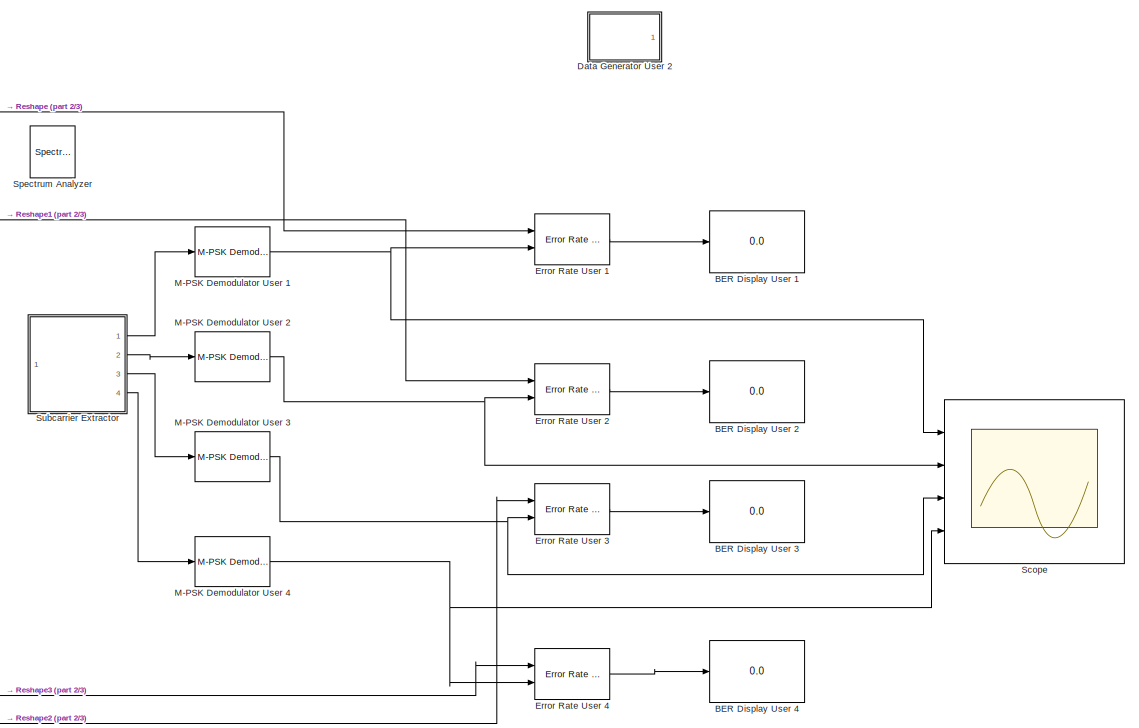
[diagram: root canvas - part 1/3, right side, full height]
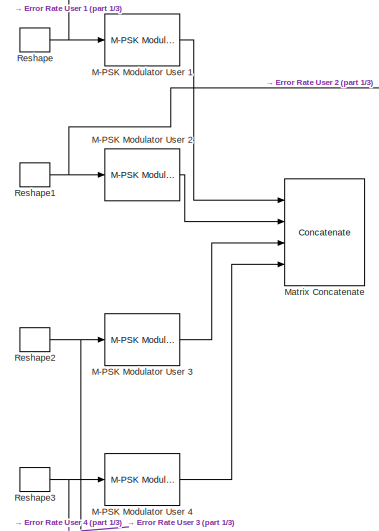
[diagram: root canvas - part 2/3, central region]
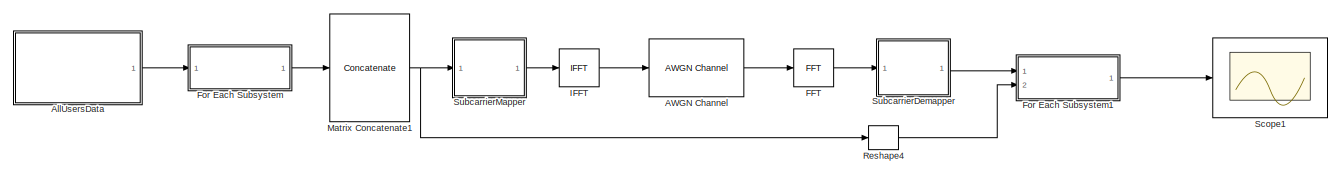
[diagram: root canvas - part 3/3, middle left region]
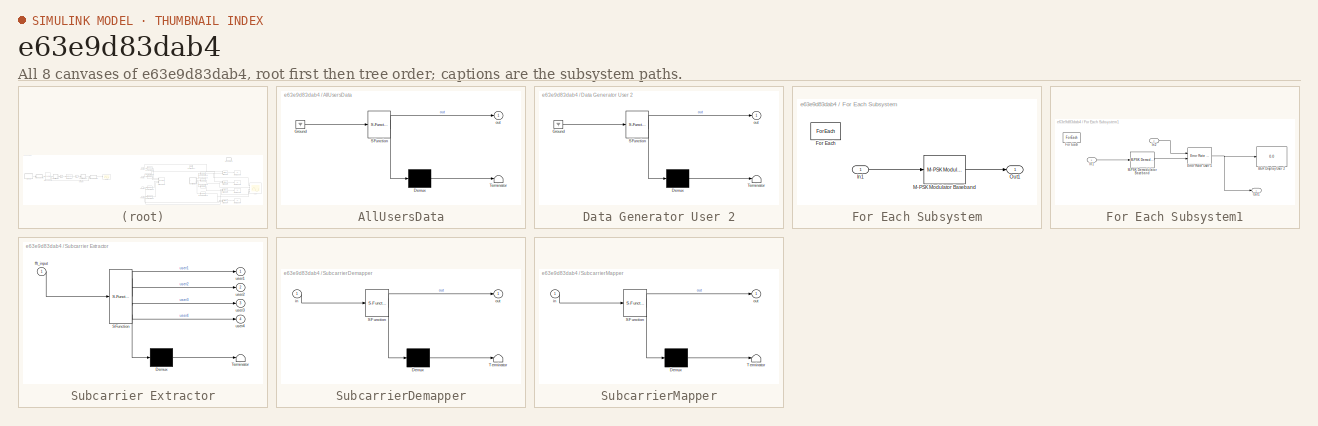
[diagram: thumbnail index - all 8 canvases of the model, root first then tree order]
MODEL slx_e63e9d83dab4
KIND model
CONFIG AbsTol = auto
CONFIG FixedStep = auto
CONFIG InitFcn = init_ofdma
CONFIG MaxStep = auto
CONFIG MinStep = auto
CONFIG RelTol = 1e-3
CONFIG SampleTimeConstraint = Unconstrained
CONFIG Solver = FixedStepDiscrete
CONFIG SolverMode = Auto
CONFIG SolverName = FixedStepDiscrete
CONFIG StartTime = 0.0
CONFIG StopTime = 10
BLOCK [Reference] AWGN Channel  REF=commchan3/AWGN
Channel
  Ports = [1, 1]
  SourceBlock = commchan3/AWGN\nChannel
  SourceType = AWGN Channel
  UserDataPersistent = on
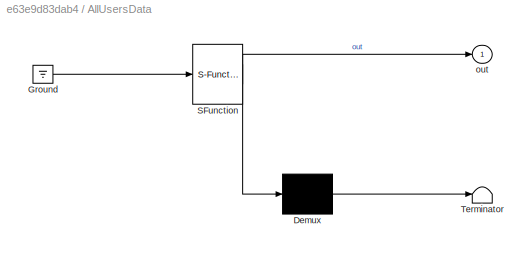
BLOCK [SubSystem] AllUsersData
  ErrorFcn = Stateflow.Translate.translate
  PermitHierarchicalResolution = ExplicitOnly
  Ports = [0, 1]
  RequestExecContextInheritance = off
  SFBlockType = MATLAB Function
  TreatAsAtomicUnit = on
  Variant = off
BLOCK [Demux] AllUsersData/ Demux 
  Outputs = 1
  Ports = [1, 1]
BLOCK [Ground] AllUsersData/ Ground 
BLOCK [S-Function] AllUsersData/ SFunction 
  EnableBusSupport = on
  FunctionName = sf_sfun
  Parameters = Nsc,numUsers
  PortCounts = [1 2]
  Ports = [1, 2]
  SFunctionDeploymentMode = off
  Tag = Stateflow S-Function OFDMA_Simulink_Demo 2
BLOCK [Terminator] AllUsersData/ Terminator 
BLOCK [Outport] AllUsersData/out
  IconDisplay = Port number
BLOCK [Display] BER Display User 1
  Commented = on
  Decimation = 1
  Ports = [1]
BLOCK [Display] BER Display User 2
  Commented = on
  Decimation = 1
  Ports = [1]
BLOCK [Display] BER Display User 3
  Commented = on
  Decimation = 1
  Ports = [1]
BLOCK [Display] BER Display User 4
  Commented = on
  Decimation = 1
  Ports = [1]
BLOCK [SubSystem] Data Generator User 2
  Commented = on
  ErrorFcn = Stateflow.Translate.translate
  PermitHierarchicalResolution = ExplicitOnly
  Ports = [0, 1]
  RequestExecContextInheritance = off
  SFBlockType = MATLAB Function
  TreatAsAtomicUnit = on
  Variant = off
BLOCK [Demux] Data Generator User 2/ Demux 
  Outputs = 1
  Ports = [1, 1]
BLOCK [Ground] Data Generator User 2/ Ground 
BLOCK [S-Function] Data Generator User 2/ SFunction 
  EnableBusSupport = on
  FunctionName = sf_sfun
  PortCounts = [1 2]
  Ports = [1, 2]
  SFunctionDeploymentMode = off
  Tag = Stateflow S-Function OFDMA_Simulink_Demo 3
BLOCK [Terminator] Data Generator User 2/ Terminator 
BLOCK [Outport] Data Generator User 2/out
  IconDisplay = Port number
BLOCK [Reference] Error Rate User 1  REF=commsink2/Error Rate
Calculation
  Commented = on
  Ports = [2, 1]
  SourceBlock = commsink2/Error Rate\nCalculation
  SourceType = Error Rate Calculation
BLOCK [Reference] Error Rate User 2  REF=commsink2/Error Rate
Calculation
  Commented = on
  Ports = [2, 1]
  SourceBlock = commsink2/Error Rate\nCalculation
  SourceType = Error Rate Calculation
BLOCK [Reference] Error Rate User 3  REF=commsink2/Error Rate
Calculation
  Commented = on
  Ports = [2, 1]
  SourceBlock = commsink2/Error Rate\nCalculation
  SourceType = Error Rate Calculation
BLOCK [Reference] Error Rate User 4  REF=commsink2/Error Rate
Calculation
  Commented = on
  Ports = [2, 1]
  SourceBlock = commsink2/Error Rate\nCalculation
  SourceType = Error Rate Calculation
BLOCK [Reference] FFT  REF=dspxfrm3/FFT
  Ports = [1, 1]
  SourceBlock = dspxfrm3/FFT
  SourceType = FFT
BLOCK [SubSystem] For Each Subsystem
  Ports = [1, 1]
  RequestExecContextInheritance = off
  TreatAsAtomicUnit = on
  Variant = off
BLOCK [ForEach] For Each Subsystem/For Each
  DisableCoverage = on
  IndexMode = One-based
  Ports = []
BLOCK [Inport] For Each Subsystem/In1
  IconDisplay = Port number
  Partition = on
  PartitionDimension = 2
  PartitionWidth = 1
BLOCK [Reference] For Each Subsystem/M-PSK Modulator Baseband  REF=commdigbbndpm3/M-PSK
Modulator
Baseband
  Ports = [1, 1]
  SourceBlock = commdigbbndpm3/M-PSK\nModulator\nBaseband
  SourceType = M-PSK Modulator Baseband
BLOCK [Outport] For Each Subsystem/Out1
  ConcatenationDimension = 1
  IconDisplay = Port number
BLOCK [SubSystem] For Each Subsystem1
  Ports = [2, 1]
  RequestExecContextInheritance = off
  TreatAsAtomicUnit = on
  Variant = off
BLOCK [Display] For Each Subsystem1/BER Display User 2
  Decimation = 1
  Ports = [1]
BLOCK [Reference] For Each Subsystem1/Error Rate User 5  REF=commsink2/Error Rate
Calculation
  Ports = [2, 1]
  SourceBlock = commsink2/Error Rate\nCalculation
  SourceType = Error Rate Calculation
BLOCK [ForEach] For Each Subsystem1/For Each
  DisableCoverage = on
  IndexMode = One-based
  Ports = []
BLOCK [Inport] For Each Subsystem1/In1
  IconDisplay = Port number
  Partition = on
  PartitionDimension = 2
  PartitionWidth = 1
BLOCK [Inport] For Each Subsystem1/In2
  IconDisplay = Port number
  Partition = on
  PartitionDimension = 2
  PartitionWidth = 1
  Port = 2
BLOCK [Reference] For Each Subsystem1/M-PSK Demodulator Baseband  REF=commdigbbndpm3/M-PSK
Demodulator
Baseband
  Ports = [1, 1]
  SourceBlock = commdigbbndpm3/M-PSK\nDemodulator\nBaseband
  SourceType = M-PSK Demodulator Baseband
BLOCK [Outport] For Each Subsystem1/Out1
  ConcatenationDimension = 1
  IconDisplay = Port number
BLOCK [Reference] IFFT  REF=dspxfrm3/IFFT
  Ports = [1, 1]
  SourceBlock = dspxfrm3/IFFT
  SourceType = IFFT
BLOCK [Reference] M-PSK Demodulator User 1  REF=commdigbbndpm3/M-PSK
Demodulator
Baseband
  Commented = on
  Ports = [1, 1]
  SourceBlock = commdigbbndpm3/M-PSK\nDemodulator\nBaseband
  SourceType = M-PSK Demodulator Baseband
BLOCK [Reference] M-PSK Demodulator User 2  REF=commdigbbndpm3/M-PSK
Demodulator
Baseband
  Commented = on
  Ports = [1, 1]
  SourceBlock = commdigbbndpm3/M-PSK\nDemodulator\nBaseband
  SourceType = M-PSK Demodulator Baseband
BLOCK [Reference] M-PSK Demodulator User 3  REF=commdigbbndpm3/M-PSK
Demodulator
Baseband
  Commented = on
  Ports = [1, 1]
  SourceBlock = commdigbbndpm3/M-PSK\nDemodulator\nBaseband
  SourceType = M-PSK Demodulator Baseband
BLOCK [Reference] M-PSK Demodulator User 4  REF=commdigbbndpm3/M-PSK
Demodulator
Baseband
  Commented = on
  Ports = [1, 1]
  SourceBlock = commdigbbndpm3/M-PSK\nDemodulator\nBaseband
  SourceType = M-PSK Demodulator Baseband
BLOCK [Reference] M-PSK Modulator User 1  REF=commdigbbndpm3/M-PSK
Modulator
Baseband
  Commented = on
  Ports = [1, 1]
  SourceBlock = commdigbbndpm3/M-PSK\nModulator\nBaseband
  SourceType = M-PSK Modulator Baseband
BLOCK [Reference] M-PSK Modulator User 2  REF=commdigbbndpm3/M-PSK
Modulator
Baseband
  Commented = on
  Ports = [1, 1]
  SourceBlock = commdigbbndpm3/M-PSK\nModulator\nBaseband
  SourceType = M-PSK Modulator Baseband
BLOCK [Reference] M-PSK Modulator User 3  REF=commdigbbndpm3/M-PSK
Modulator
Baseband
  Commented = on
  Ports = [1, 1]
  SourceBlock = commdigbbndpm3/M-PSK\nModulator\nBaseband
  SourceType = M-PSK Modulator Baseband
BLOCK [Reference] M-PSK Modulator User 4  REF=commdigbbndpm3/M-PSK
Modulator
Baseband
  Commented = on
  Ports = [1, 1]
  SourceBlock = commdigbbndpm3/M-PSK\nModulator\nBaseband
  SourceType = M-PSK Modulator Baseband
BLOCK [Concatenate] Matrix Concatenate
  Commented = on
  Mode = Multidimensional array
  NumInputs = 4
  Ports = [4, 1]
BLOCK [Concatenate] Matrix Concatenate1
  NumInputs = 1
  Ports = [1, 1]
BLOCK [Reshape] Reshape
  Commented = on
  OutputDimensionality = Customize
  OutputDimensions = [20, 1]
  Ports = [1, 1]
BLOCK [Reshape] Reshape1
  Commented = on
  OutputDimensionality = Customize
  OutputDimensions = [20, 1]
  Ports = [1, 1]
BLOCK [Reshape] Reshape2
  Commented = on
  OutputDimensionality = Customize
  OutputDimensions = [20, 1]
  Ports = [1, 1]
BLOCK [Reshape] Reshape3
  Commented = on
  OutputDimensionality = Customize
  OutputDimensions = [20, 1]
  Ports = [1, 1]
BLOCK [Reshape] Reshape4
  OutputDimensionality = Customize
  OutputDimensions = [4 16]
  Ports = [1, 1]
BLOCK [Scope] Scope
  Commented = on
  NumInputPorts = 4
  Ports = [4]
  ScopeSpecificationString = Simulink.scopes.TimeScopeBlockCfg('CurrentConfiguration', extmgr.ConfigurationSet(extmgr.Configuration('Core','General UI',true),extmgr.Configuration('Core','Source UI',true),extmgr.Configuration('Sources','WiredSimulink',true),extmgr.Configuration('Visuals','Time Domain',true,'SerializedDisplays',{struct('MinYLimReal','-0.375','MaxYLimReal','3.375','YLabelReal','','MinYLimMag','0.00000','MaxYLimM...<+5690ch>
BLOCK [Scope] Scope1
  Ports = [1]
  ScopeSpecificationString = Simulink.scopes.TimeScopeBlockCfg('CurrentConfiguration', extmgr.ConfigurationSet(extmgr.Configuration('Core','General UI',true),extmgr.Configuration('Core','Source UI',true),extmgr.Configuration('Sources','WiredSimulink',true,'DataLoggingVariableName','ScopeData1'),extmgr.Configuration('Visuals','Time Domain',true,'SerializedDisplays',{struct('MinYLimReal','-0.375','MaxYLimReal','3.375','YLabelRe...<+1581ch>
BLOCK [SpectrumAnalyzer] Spectrum Analyzer
  Commented = on
  NumInputPorts = 1
  Ports = [1]
  ScopeSpecificationString = spbscopes.SpectrumAnalyzerBlockCfg('CurrentConfiguration', extmgr.ConfigurationSet(extmgr.Configuration('Core','General UI',true),extmgr.Configuration('Core','Source UI',true),extmgr.Configuration('Sources','WiredSimulink',true),extmgr.Configuration('Sources','Simulink',false),extmgr.Configuration('Sources','SimulinkEvent',false),extmgr.Configuration('Sources','File',false),extmgr.Configuration('S...<+2988ch>
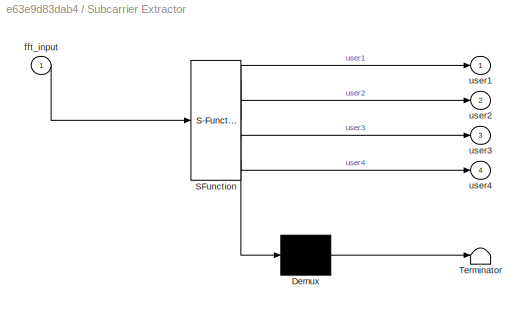
BLOCK [SubSystem] Subcarrier Extractor
  Commented = on
  ErrorFcn = Stateflow.Translate.translate
  PermitHierarchicalResolution = ExplicitOnly
  Ports = [1, 4]
  RequestExecContextInheritance = off
  SFBlockType = MATLAB Function
  TreatAsAtomicUnit = on
  Variant = off
BLOCK [Demux] Subcarrier Extractor/ Demux 
  Outputs = 1
  Ports = [1, 1]
BLOCK [S-Function] Subcarrier Extractor/ SFunction 
  EnableBusSupport = on
  FunctionName = sf_sfun
  PortCounts = [1 5]
  Ports = [1, 5]
  SFunctionDeploymentMode = off
  Tag = Stateflow S-Function OFDMA_Simulink_Demo 1
BLOCK [Terminator] Subcarrier Extractor/ Terminator 
BLOCK [Inport] Subcarrier Extractor/fft_input
  IconDisplay = Port number
BLOCK [Outport] Subcarrier Extractor/user1
  IconDisplay = Port number
BLOCK [Outport] Subcarrier Extractor/user2
  IconDisplay = Port number
  Port = 2
BLOCK [Outport] Subcarrier Extractor/user3
  IconDisplay = Port number
  Port = 3
BLOCK [Outport] Subcarrier Extractor/user4
  IconDisplay = Port number
  Port = 4
BLOCK [SubSystem] SubcarrierDemapper
  ErrorFcn = Stateflow.Translate.translate
  PermitHierarchicalResolution = ExplicitOnly
  Ports = [1, 1]
  RequestExecContextInheritance = off
  SFBlockType = MATLAB Function
  TreatAsAtomicUnit = on
  Variant = off
BLOCK [Demux] SubcarrierDemapper/ Demux 
  Outputs = 1
  Ports = [1, 1]
BLOCK [S-Function] SubcarrierDemapper/ SFunction 
  EnableBusSupport = on
  FunctionName = sf_sfun
  Parameters = Nsc,numUsers
  PortCounts = [1 2]
  Ports = [1, 2]
  SFunctionDeploymentMode = off
  Tag = Stateflow S-Function OFDMA_Simulink_Demo 5
BLOCK [Terminator] SubcarrierDemapper/ Terminator 
BLOCK [Inport] SubcarrierDemapper/in
  IconDisplay = Port number
BLOCK [Outport] SubcarrierDemapper/out
  IconDisplay = Port number
BLOCK [SubSystem] SubcarrierMapper
  ErrorFcn = Stateflow.Translate.translate
  PermitHierarchicalResolution = ExplicitOnly
  Ports = [1, 1]
  RequestExecContextInheritance = off
  SFBlockType = MATLAB Function
  TreatAsAtomicUnit = on
  Variant = off
BLOCK [Demux] SubcarrierMapper/ Demux 
  Outputs = 1
  Ports = [1, 1]
BLOCK [S-Function] SubcarrierMapper/ SFunction 
  EnableBusSupport = on
  FunctionName = sf_sfun
  Parameters = FFTLength,Nsc,numUsers
  PortCounts = [1 2]
  Ports = [1, 2]
  SFunctionDeploymentMode = off
  Tag = Stateflow S-Function OFDMA_Simulink_Demo 4
BLOCK [Terminator] SubcarrierMapper/ Terminator 
BLOCK [Inport] SubcarrierMapper/in
  IconDisplay = Port number
BLOCK [Outport] SubcarrierMapper/out
  IconDisplay = Port number
LINE AWGN Channel:1 -> FFT:1
LINE AllUsersData:1 -> For Each Subsystem:1
LINE Error Rate User 1:1 -> BER Display User 1:1
LINE Error Rate User 2:1 -> BER Display User 2:1
LINE Error Rate User 3:1 -> BER Display User 3:1
LINE Error Rate User 4:1 -> BER Display User 4:1
LINE FFT:1 -> SubcarrierDemapper:1
LINE For Each Subsystem/In1:1 -> For Each Subsystem/M-PSK Modulator Baseband:1
LINE For Each Subsystem/M-PSK Modulator Baseband:1 -> For Each Subsystem/Out1:1
NET For Each Subsystem1/Error Rate User 5:1 -> For Each Subsystem1/BER Display User 2:1, For Each Subsystem1/Out1:1
LINE For Each Subsystem1/In1:1 -> For Each Subsystem1/M-PSK Demodulator Baseband:1
LINE For Each Subsystem1/In2:1 -> For Each Subsystem1/Error Rate User 5:1
LINE For Each Subsystem1/M-PSK Demodulator Baseband:1 -> For Each Subsystem1/Error Rate User 5:2
LINE For Each Subsystem1:1 -> Scope1:1
LINE For Each Subsystem:1 -> Matrix Concatenate1:1
LINE IFFT:1 -> AWGN Channel:1
NET M-PSK Demodulator User 1:1 -> Error Rate User 1:2, Scope:1
NET M-PSK Demodulator User 2:1 -> Error Rate User 2:2, Scope:2
NET M-PSK Demodulator User 3:1 -> Error Rate User 3:2, Scope:3
NET M-PSK Demodulator User 4:1 -> Error Rate User 4:2, Scope:4
LINE M-PSK Modulator User 1:1 -> Matrix Concatenate:1
LINE M-PSK Modulator User 2:1 -> Matrix Concatenate:2
LINE M-PSK Modulator User 3:1 -> Matrix Concatenate:3
LINE M-PSK Modulator User 4:1 -> Matrix Concatenate:4
NET Matrix Concatenate1:1 -> Reshape4:1, SubcarrierMapper:1
NET Reshape1:1 -> Error Rate User 2:1, M-PSK Modulator User 2:1
NET Reshape2:1 -> Error Rate User 3:1, M-PSK Modulator User 3:1
NET Reshape3:1 -> Error Rate User 4:1, M-PSK Modulator User 4:1
LINE Reshape4:1 -> For Each Subsystem1:2
NET Reshape:1 -> Error Rate User 1:1, M-PSK Modulator User 1:1
LINE Subcarrier Extractor:1 -> M-PSK Demodulator User 1:1
LINE Subcarrier Extractor:2 -> M-PSK Demodulator User 2:1
LINE Subcarrier Extractor:3 -> M-PSK Demodulator User 3:1
LINE Subcarrier Extractor:4 -> M-PSK Demodulator User 4:1
LINE SubcarrierDemapper:1 -> For Each Subsystem1:1
LINE SubcarrierMapper:1 -> IFFT:1
note: NET lines group one-source signal fan-out (src -> all destinations, sorted); 1:1 wires keep LINE
CHART Subcarrier Extractor states=1 transitions=1
  STATE_LABEL 'eML_blk_kernel()'
  STATE_LABEL "SCRIPT:\nfunction [user1, user2, user3, user4] = fcn(fft_input)\n% Extract subcarriers for each of 4 users\n% Input: fft_input [80x1] - all subcarriers from FFT\n% Outputs: 4 users, each [20x1] - their allocated subcarriers\n\n% Convert input to column vector (handles any dimension)\nfft_col = fft_input(:);\n\n% Extract each user's allocated subcarriers\nuser1 = fft_col(1:20);    % User 1: subcarriers 1-20\n...<+165ch>"
CHART AllUsersData states=1 transitions=1
  STATE_LABEL 'eML_blk_kernel()'
  STATE_LABEL 'SCRIPT:\nfunction out = AllUsersData(numUsers, Nsc)\n\n% FORCE FIXED SIZE OUTPUT\nout = complex(zeros(4,16));   % <-- hardcode once to stabilize model\n\n% generate random QPSK data per user\nfor u = 1:16\n    bits = randi([0 3],4,1);\n    out(:,u) = pskmod(bits,4,pi/4);\nend'
CHART Data Generator User 2 states=1 transitions=1
  STATE_LABEL 'eML_blk_kernel()'
  STATE_LABEL 'SCRIPT:\nfunction out = fcn()\n\nN_SC = 20;\nout = double(randi([0 3], N_SC, 1));\n\nend\n\n%numUsers * subcarriersPerUser'
CHART SubcarrierMapper states=1 transitions=1
  STATE_LABEL 'eML_blk_kernel()'
  STATE_LABEL 'SCRIPT:\nfunction out = SubcarrierMapper(in, numUsers, Nsc, FFTLength)\n\n% ---- FORCE FIXED SIZE OUTPUT ----\nout = complex(zeros(64,1));\n% in = [numUsers × Nsc] symbols\n% Map each user to its OFDMA subcarriers\n\nidx = 1;\n\nfor u = 1:numUsers\n    for k = 1:Nsc\n        out(idx) = in(u,k);\n        idx = idx + 1;\n    end\nend'
CHART SubcarrierDemapper states=1 transitions=1
  STATE_LABEL 'eML_blk_kernel()'
  STATE_LABEL 'SCRIPT:\nfunction out = SubcarrierDemapper(in, numUsers, Nsc)\n\nout = complex(zeros(4,16));\n\nidx = 1;\n\nfor u = 1:numUsers\n    for k = 1:Nsc\n        out(u,k) = in(idx);\n        idx = idx + 1;\n    end\nend'
